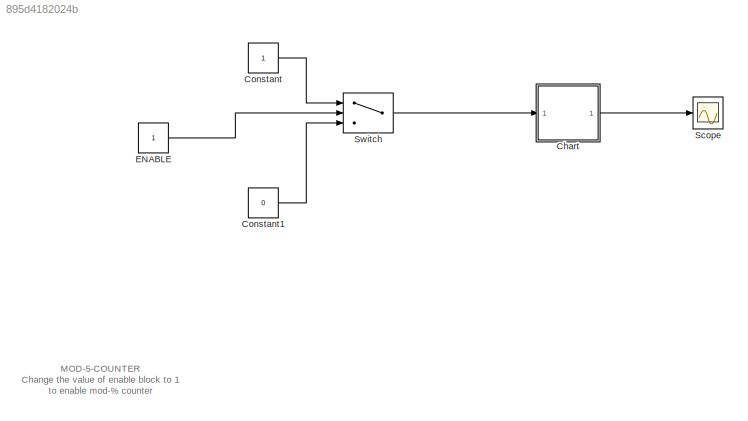
MODEL slx_895d4182024b
KIND model
CONFIG AbsTol = auto
CONFIG FixedStep = auto
CONFIG MaxStep = auto
CONFIG MinStep = auto
CONFIG RelTol = 1e-3
CONFIG SampleTimeConstraint = Unconstrained
CONFIG Solver = VariableStepAuto
CONFIG SolverMode = Auto
CONFIG SolverName = VariableStepAuto
CONFIG StartTime = 0.0
CONFIG StopTime = 100
WORKSPACE source: MAT-file member
WORKSPACE MCOS: class17 (value not decoded)
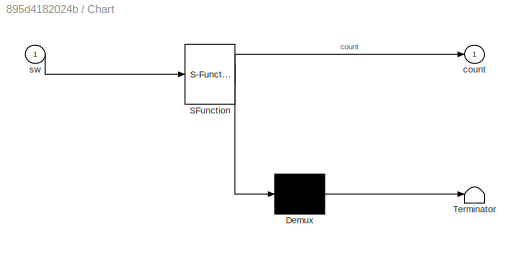
BLOCK [SubSystem] Chart
  ErrorFcn = Stateflow.Translate.translate
  PermitHierarchicalResolution = ExplicitOnly
  Ports = [1, 1]
  RequestExecContextInheritance = off
  SFBlockType = Chart
  TreatAsAtomicUnit = on
  Variant = off
BLOCK [Demux] Chart/ Demux 
  Outputs = 1
  Ports = [1, 1]
BLOCK [S-Function] Chart/ SFunction 
  EnableBusSupport = on
  FunctionName = sf_sfun
  PortCounts = [1 2]
  Ports = [1, 2]
  SFunctionDeploymentMode = off
  Tag = Stateflow S-Function mod5counter_simulink 3
BLOCK [Terminator] Chart/ Terminator 
BLOCK [Outport] Chart/count
  IconDisplay = Port number
BLOCK [Inport] Chart/sw
  IconDisplay = Port number
BLOCK [Constant] Constant
BLOCK [Constant] Constant1
  Value = 0
BLOCK [Constant] ENABLE
BLOCK [Scope] Scope
  Ports = [1]
  ScopeSpecificationString = Simulink.scopes.TimeScopeBlockCfg('CurrentConfiguration', extmgr.ConfigurationSet(extmgr.Configuration('Core','General UI',true),extmgr.Configuration('Core','Source UI',true),extmgr.Configuration('Sources','WiredSimulink',true),extmgr.Configuration('Visuals','Time Domain',true,'SerializedDisplays',{struct('MinYLimReal','-0.625','MaxYLimReal','5.625','YLabelReal','','MinYLimMag','0.00000','MaxYLimM...<+1370ch>
BLOCK [Switch] Switch
  Criteria = u2 > Threshold
  InputSameDT = off
  SaturateOnIntegerOverflow = off
ANNOTATION (root): MOD-5-COUNTER Change the value of enable block to 1 to enable mod-% counter
LINE Chart:1 -> Scope:1
LINE Constant1:1 -> Switch:3
LINE Constant:1 -> Switch:1
LINE ENABLE:1 -> Switch:2
LINE Switch:1 -> Chart:1
CHART Chart states=7 transitions=9
  STATE_LABEL 'One\nentry:\n\tcount=1;\nduring:\n\tcount=count+1;\nexit:'
  STATE_LABEL 'Three\nentry:\n\tcount=3;\nduring:\n\tcount=count+1;\nexit:'
  STATE_LABEL 'Two\nentry:\n\tcount=2;\nduring:\n\tcount=count+1;\nexit:'
  STATE_LABEL 'Init\nentry:\nduring:\nexit:\n'
  STATE_LABEL 'Zero\nentry:\n\tcount=0;\nduring:\n\tcount=count+1;\nexit:\n'
  STATE_LABEL 'Four\nentry:\n\tcount=4;\nduring:\n\tcount=count+1;\nexit:'
  STATE_LABEL 'Five\nentry:\n\tcount=5;\nduring:\n\tcount=0;\nexit:'
